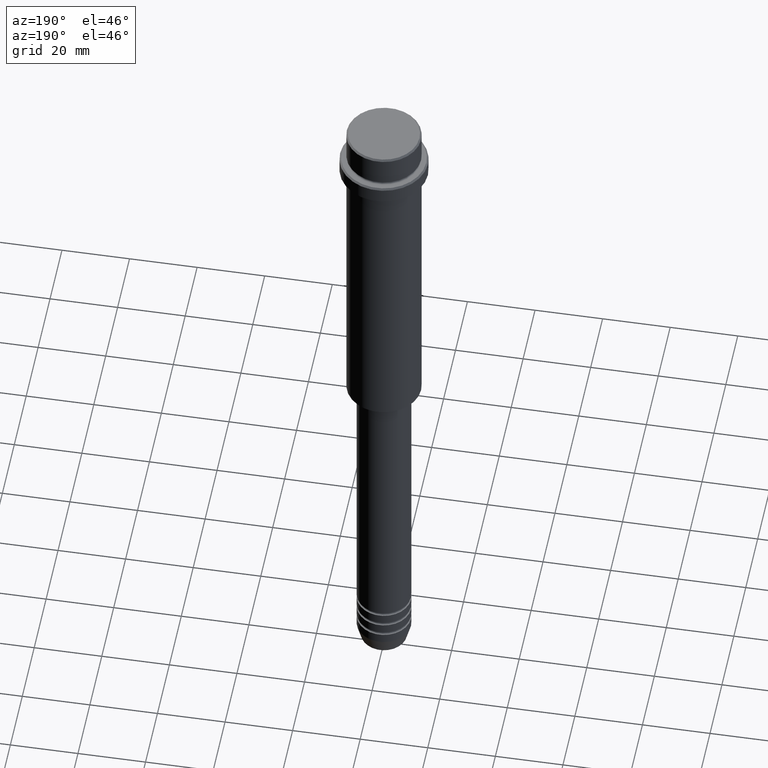
[diagram: clean part render]
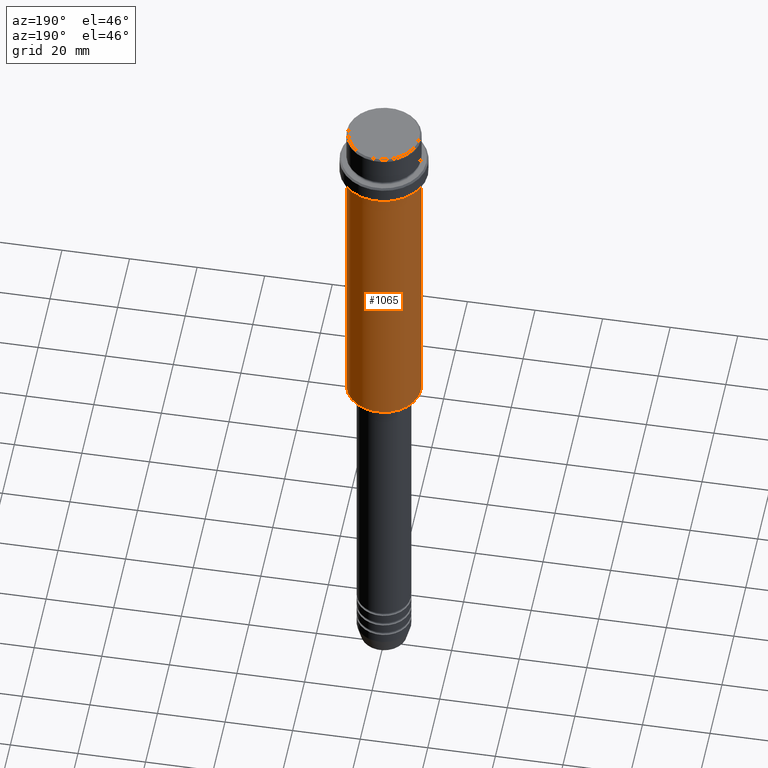
[diagram: same view with one face highlighted and labeled with its STEP entity id]
A machine part, auxiliary view. The second image highlights one B-rep face of the part: STEP entity #1065.
In plain terms, the highlighted cylindrical surface (partial cylindrical patch) has radius 11 mm, axis along (-0, -0, 1).
Its self-contained STEP definition (entity closure, byte-faithful):
#37 = AXIS2_PLACEMENT_3D ( 'NONE', #511, #946, #100 ) ;
#53 = ORIENTED_EDGE ( 'NONE', *, *, #413, .F. ) ;
#79 = FACE_OUTER_BOUND ( 'NONE', #171, .T. ) ;
#100 = DIRECTION ( 'NONE',  ( 1.000000000000000000, 0.000000000000000000, 0.000000000000000000 ) ) ;
#124 = ORIENTED_EDGE ( 'NONE', *, *, #601, .T. ) ;
#133 = DIRECTION ( 'NONE',  ( -0.000000000000000000, -0.000000000000000000, 1.000000000000000000 ) ) ;
#171 = EDGE_LOOP ( 'NONE', ( #124, #1028, #842, #53 ) ) ;
#207 = VERTEX_POINT ( 'NONE', #795 ) ;
#242 = CIRCLE ( 'NONE', #947, 10.99999999999997158 ) ;
#315 = DIRECTION ( 'NONE',  ( -0.000000000000000000, -0.000000000000000000, 1.000000000000000000 ) ) ;
#323 = VERTEX_POINT ( 'NONE', #331 ) ;
#331 = CARTESIAN_POINT ( 'NONE',  ( 10.99999999999998757, 0.000000000000000000, -105.5000000000000142 ) ) ;
#410 = VERTEX_POINT ( 'NONE', #1227 ) ;
#413 = EDGE_CURVE ( 'NONE', #323, #410, #1016, .T. ) ;
#419 = LINE ( 'NONE', #844, #1058 ) ;
#447 = DIRECTION ( 'NONE',  ( -1.000000000000000000, 0.000000000000000000, 0.000000000000000000 ) ) ;
#467 = DIRECTION ( 'NONE',  ( -0.000000000000000000, -0.000000000000000000, 1.000000000000000000 ) ) ;
#511 = CARTESIAN_POINT ( 'NONE',  ( 0.000000000000000000, 0.000000000000000000, 0.000000000000000000 ) ) ;
#601 = EDGE_CURVE ( 'NONE', #323, #207, #827, .T. ) ;
#679 = AXIS2_PLACEMENT_3D ( 'NONE', #963, #133, #447 ) ;
#776 = CARTESIAN_POINT ( 'NONE',  ( -10.99999999999997158, 1.347111479062085841E-15, -16.00000000000000355 ) ) ;
#795 = CARTESIAN_POINT ( 'NONE',  ( -10.99999999999998757, 1.347111479062086827E-15, -105.5000000000000142 ) ) ;
#827 = CIRCLE ( 'NONE', #679, 10.99999999999998757 ) ;
#842 = ORIENTED_EDGE ( 'NONE', *, *, #1019, .F. ) ;
#844 = CARTESIAN_POINT ( 'NONE',  ( -10.99999999999998757, 1.347111479062086827E-15, 0.000000000000000000 ) ) ;
#916 = CARTESIAN_POINT ( 'NONE',  ( 0.000000000000000000, 0.000000000000000000, -16.00000000000000355 ) ) ;
#946 = DIRECTION ( 'NONE',  ( -0.000000000000000000, -0.000000000000000000, 1.000000000000000000 ) ) ;
#947 = AXIS2_PLACEMENT_3D ( 'NONE', #916, #1248, #1171 ) ;
#963 = CARTESIAN_POINT ( 'NONE',  ( 0.000000000000000000, 0.000000000000000000, -105.5000000000000142 ) ) ;
#1016 = LINE ( 'NONE', #1216, #1200 ) ;
#1019 = EDGE_CURVE ( 'NONE', #410, #1147, #242, .T. ) ;
#1028 = ORIENTED_EDGE ( 'NONE', *, *, #1118, .T. ) ;
#1058 = VECTOR ( 'NONE', #315, 1000.000000000000000 ) ;
#1065 = ADVANCED_FACE ( 'NONE', ( #79 ), #1277, .T. ) ;
#1118 = EDGE_CURVE ( 'NONE', #207, #1147, #419, .T. ) ;
#1147 = VERTEX_POINT ( 'NONE', #776 ) ;
#1171 = DIRECTION ( 'NONE',  ( 1.000000000000000000, 0.000000000000000000, 0.000000000000000000 ) ) ;
#1200 = VECTOR ( 'NONE', #467, 1000.000000000000000 ) ;
#1216 = CARTESIAN_POINT ( 'NONE',  ( 10.99999999999998757, 0.000000000000000000, 0.000000000000000000 ) ) ;
#1227 = CARTESIAN_POINT ( 'NONE',  ( 10.99999999999997158, 0.000000000000000000, -16.00000000000000355 ) ) ;
#1248 = DIRECTION ( 'NONE',  ( -0.000000000000000000, -0.000000000000000000, 1.000000000000000000 ) ) ;
#1277 = CYLINDRICAL_SURFACE ( 'NONE', #37, 10.99999999999998757 ) ;